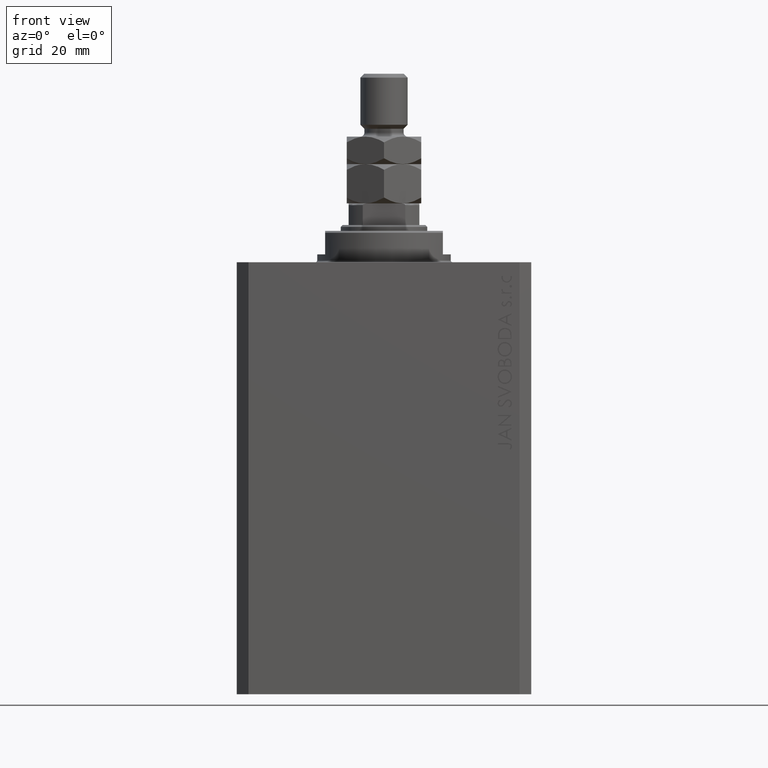
[diagram: clean part render]
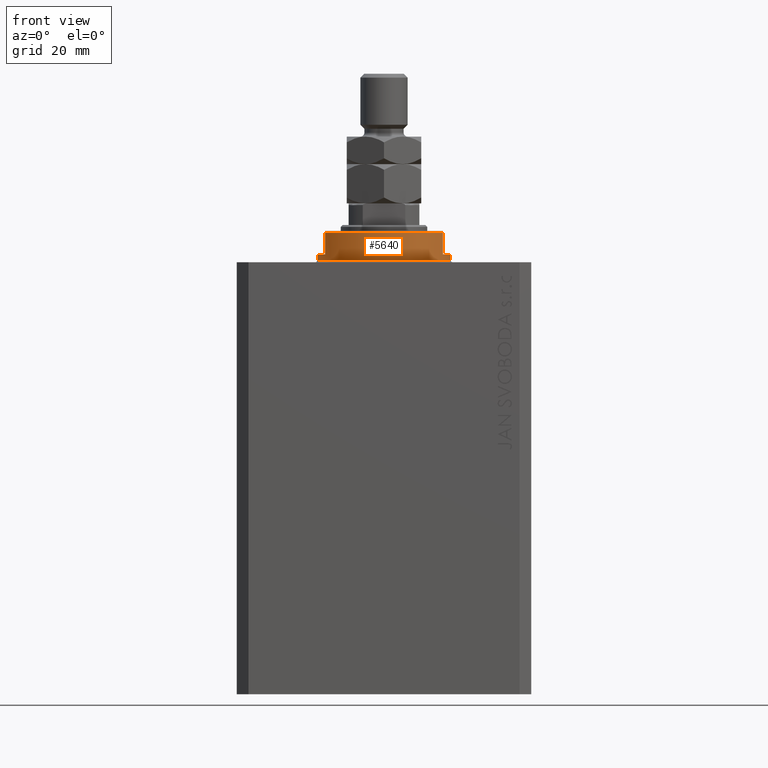
[diagram: same view with one face highlighted and labeled with its STEP entity id]
A machine part, front view. The second image highlights one B-rep face of the part: STEP entity #5640.
In plain terms, the highlighted cylindrical surface (partial cylindrical patch) has radius 17 mm, axis along (0, 0, -1).
Its self-contained STEP definition (entity closure, byte-faithful):
#542 = CARTESIAN_POINT ( 'NONE',  ( 14.99999999999999645, -8.000000000000003553, -2.000000000000000000 ) ) ;
#1608 = CIRCLE ( 'NONE', #15086, 17.00000000000000000 ) ;
#1791 = DIRECTION ( 'NONE',  ( 0.000000000000000000, 0.000000000000000000, -1.000000000000000000 ) ) ;
#3373 = ORIENTED_EDGE ( 'NONE', *, *, #8333, .T. ) ;
#4559 = DIRECTION ( 'NONE',  ( -0.000000000000000000, -0.000000000000000000, 1.000000000000000000 ) ) ;
#4902 = EDGE_CURVE ( 'NONE', #30072, #47839, #26313, .T. ) ;
#5127 = VERTEX_POINT ( 'NONE', #542 ) ;
#5640 = ADVANCED_FACE ( 'NONE', ( #27282 ), #18481, .T. ) ;
#7900 = AXIS2_PLACEMENT_3D ( 'NONE', #37361, #40579, #45240 ) ;
#8100 = ORIENTED_EDGE ( 'NONE', *, *, #39037, .F. ) ;
#8333 = EDGE_CURVE ( 'NONE', #42348, #30072, #42069, .T. ) ;
#8422 = ORIENTED_EDGE ( 'NONE', *, *, #36383, .F. ) ;
#9214 = ORIENTED_EDGE ( 'NONE', *, *, #33679, .T. ) ;
#9347 = DIRECTION ( 'NONE',  ( -1.000000000000000000, 0.000000000000000000, 0.000000000000000000 ) ) ;
#9531 = AXIS2_PLACEMENT_3D ( 'NONE', #16777, #38990, #9347 ) ;
#9661 = CARTESIAN_POINT ( 'NONE',  ( 0.000000000000000000, 0.000000000000000000, -7.500000000000007105 ) ) ;
#10845 = ORIENTED_EDGE ( 'NONE', *, *, #23348, .F. ) ;
#13515 = VERTEX_POINT ( 'NONE', #36876 ) ;
#13533 = CARTESIAN_POINT ( 'NONE',  ( -14.99999999999999645, -8.000000000000003553, -2.000000000000000000 ) ) ;
#14106 = DIRECTION ( 'NONE',  ( 0.000000000000000000, 0.000000000000000000, 1.000000000000000000 ) ) ;
#14363 = ORIENTED_EDGE ( 'NONE', *, *, #4902, .T. ) ;
#14614 = CARTESIAN_POINT ( 'NONE',  ( -17.00000000000000000, 2.081899558550500280E-15, -8.000000000000000000 ) ) ;
#15086 = AXIS2_PLACEMENT_3D ( 'NONE', #9661, #14106, #17329 ) ;
#15924 = VECTOR ( 'NONE', #29686, 1000.000000000000000 ) ;
#16777 = CARTESIAN_POINT ( 'NONE',  ( 0.000000000000000000, 0.000000000000000000, -2.000000000000000000 ) ) ;
#17329 = DIRECTION ( 'NONE',  ( -1.000000000000000000, 0.000000000000000000, 0.000000000000000000 ) ) ;
#17618 = CARTESIAN_POINT ( 'NONE',  ( -15.00000000000000000, -8.000000000000001776, -8.000000000000000000 ) ) ;
#18481 = CYLINDRICAL_SURFACE ( 'NONE', #26347, 17.00000000000000000 ) ;
#19384 = DIRECTION ( 'NONE',  ( -0.000000000000000000, -0.000000000000000000, 1.000000000000000000 ) ) ;
#19574 = ORIENTED_EDGE ( 'NONE', *, *, #41052, .T. ) ;
#20101 = VECTOR ( 'NONE', #4559, 1000.000000000000000 ) ;
#20581 = LINE ( 'NONE', #17618, #38765 ) ;
#21562 = DIRECTION ( 'NONE',  ( 0.000000000000000000, 0.000000000000000000, -1.000000000000000000 ) ) ;
#22822 = CARTESIAN_POINT ( 'NONE',  ( 0.000000000000000000, 0.000000000000000000, -0.5000000000000004441 ) ) ;
#23325 = CARTESIAN_POINT ( 'NONE',  ( 17.00000000000000000, 0.000000000000000000, -8.000000000000000000 ) ) ;
#23348 = EDGE_CURVE ( 'NONE', #25113, #13515, #29220, .T. ) ;
#23596 = VERTEX_POINT ( 'NONE', #29687 ) ;
#24718 = AXIS2_PLACEMENT_3D ( 'NONE', #22822, #30730, #37872 ) ;
#25113 = VERTEX_POINT ( 'NONE', #13533 ) ;
#25334 = VECTOR ( 'NONE', #1791, 1000.000000000000000 ) ;
#26313 = CIRCLE ( 'NONE', #24718, 17.00000000000000000 ) ;
#26347 = AXIS2_PLACEMENT_3D ( 'NONE', #34432, #19384, #33526 ) ;
#27282 = FACE_OUTER_BOUND ( 'NONE', #32231, .T. ) ;
#29220 = CIRCLE ( 'NONE', #7900, 17.00000000000000000 ) ;
#29686 = DIRECTION ( 'NONE',  ( -0.000000000000000000, -0.000000000000000000, 1.000000000000000000 ) ) ;
#29687 = CARTESIAN_POINT ( 'NONE',  ( -15.00000000000000000, -8.000000000000001776, -7.500000000000007105 ) ) ;
#30072 = VERTEX_POINT ( 'NONE', #39608 ) ;
#30730 = DIRECTION ( 'NONE',  ( -0.000000000000000000, -0.000000000000000000, -1.000000000000000000 ) ) ;
#32231 = EDGE_LOOP ( 'NONE', ( #8422, #10845, #19574, #9214, #8100, #46819, #3373, #14363 ) ) ;
#33526 = DIRECTION ( 'NONE',  ( 1.000000000000000000, 0.000000000000000000, 0.000000000000000000 ) ) ;
#33679 = EDGE_CURVE ( 'NONE', #23596, #41608, #1608, .T. ) ;
#33791 = EDGE_CURVE ( 'NONE', #42348, #5127, #48130, .T. ) ;
#34432 = CARTESIAN_POINT ( 'NONE',  ( 0.000000000000000000, 0.000000000000000000, -8.000000000000000000 ) ) ;
#35357 = LINE ( 'NONE', #43485, #25334 ) ;
#36383 = EDGE_CURVE ( 'NONE', #13515, #47839, #48396, .T. ) ;
#36876 = CARTESIAN_POINT ( 'NONE',  ( -17.00000000000000000, 2.081899558550500280E-15, -2.000000000000000000 ) ) ;
#37026 = CARTESIAN_POINT ( 'NONE',  ( 15.00000000000000000, -8.000000000000001776, -7.500000000000007105 ) ) ;
#37361 = CARTESIAN_POINT ( 'NONE',  ( 0.000000000000000000, 0.000000000000000000, -2.000000000000000000 ) ) ;
#37872 = DIRECTION ( 'NONE',  ( 1.000000000000000000, 0.000000000000000000, 0.000000000000000000 ) ) ;
#38032 = CARTESIAN_POINT ( 'NONE',  ( -17.00000000000000000, 2.081899558550500280E-15, -0.5000000000000004441 ) ) ;
#38765 = VECTOR ( 'NONE', #21562, 1000.000000000000000 ) ;
#38990 = DIRECTION ( 'NONE',  ( 0.000000000000000000, 0.000000000000000000, -1.000000000000000000 ) ) ;
#39037 = EDGE_CURVE ( 'NONE', #5127, #41608, #35357, .T. ) ;
#39608 = CARTESIAN_POINT ( 'NONE',  ( 17.00000000000000000, 0.000000000000000000, -0.5000000000000004441 ) ) ;
#40579 = DIRECTION ( 'NONE',  ( 0.000000000000000000, 0.000000000000000000, -1.000000000000000000 ) ) ;
#41052 = EDGE_CURVE ( 'NONE', #25113, #23596, #20581, .T. ) ;
#41608 = VERTEX_POINT ( 'NONE', #37026 ) ;
#42069 = LINE ( 'NONE', #23325, #20101 ) ;
#42348 = VERTEX_POINT ( 'NONE', #46827 ) ;
#43485 = CARTESIAN_POINT ( 'NONE',  ( 15.00000000000000000, -8.000000000000001776, -8.000000000000000000 ) ) ;
#45240 = DIRECTION ( 'NONE',  ( -1.000000000000000000, 0.000000000000000000, 0.000000000000000000 ) ) ;
#46819 = ORIENTED_EDGE ( 'NONE', *, *, #33791, .F. ) ;
#46827 = CARTESIAN_POINT ( 'NONE',  ( 17.00000000000000000, 0.000000000000000000, -2.000000000000000000 ) ) ;
#47839 = VERTEX_POINT ( 'NONE', #38032 ) ;
#48130 = CIRCLE ( 'NONE', #9531, 17.00000000000000000 ) ;
#48396 = LINE ( 'NONE', #14614, #15924 ) ;